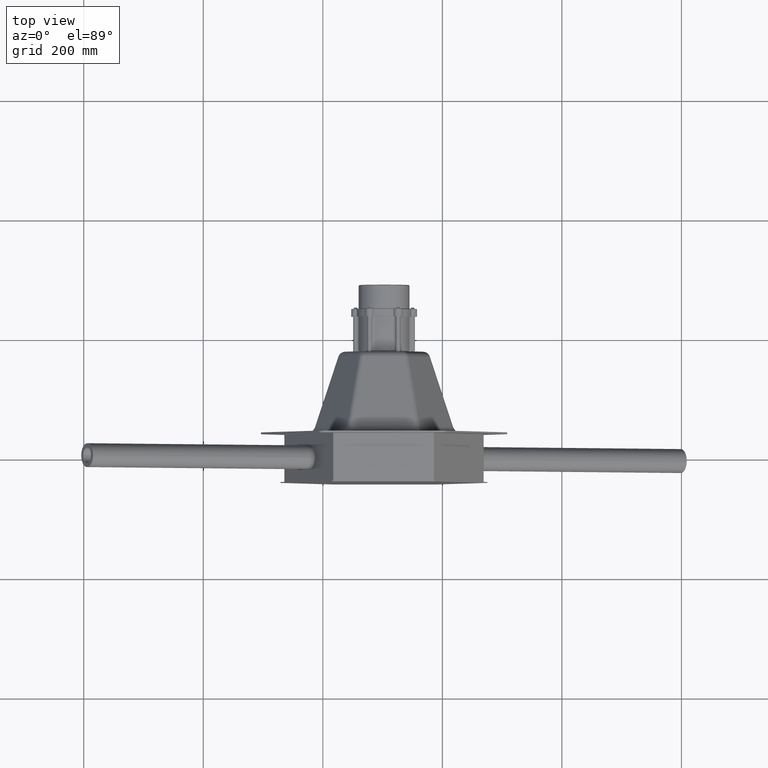
[diagram: clean part render]
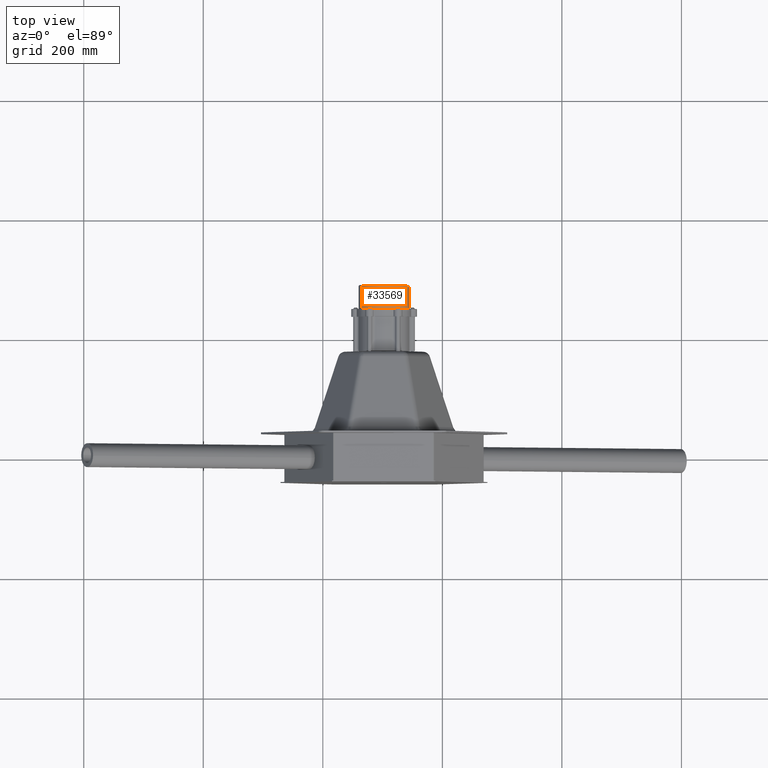
[diagram: same view with one face highlighted and labeled with its STEP entity id]
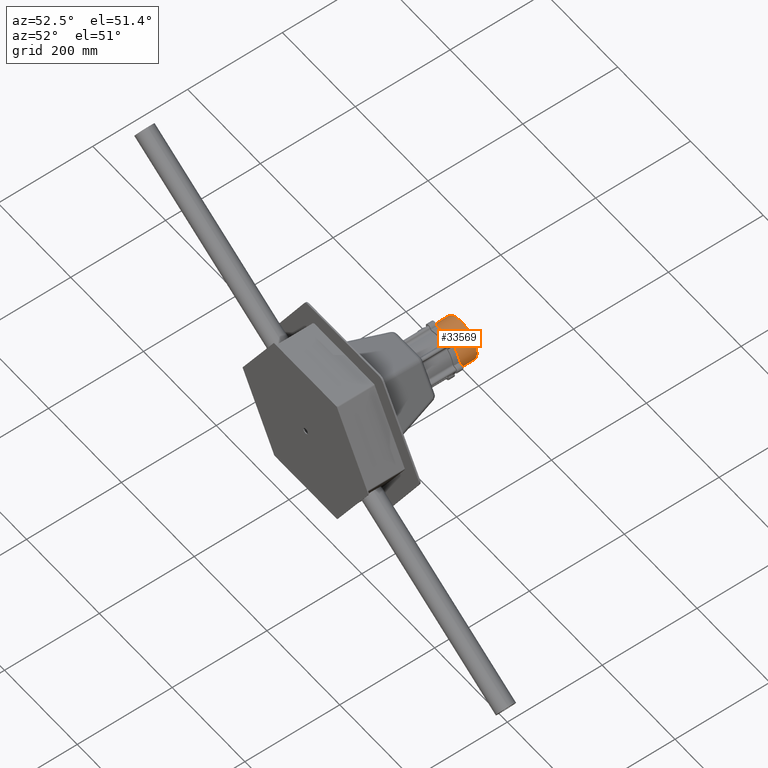
[diagram: same view with one face highlighted and labeled with its STEP entity id]
A machine part, top view. The second image highlights one B-rep face of the part: STEP entity #33569.
A second angle (auxiliary view) of the same face is appended — the face is thin or edge-on in the first view.
In plain terms, the highlighted cylindrical surface (edge-blend (fillet) strip) has radius 42.5 mm, axis along (0, -1, 0).
Its self-contained STEP definition (entity closure, byte-faithful):
#64 = DIRECTION ( 'NONE',  ( 1.000000000000000000, 0.0000000000000000000, 0.0000000000000000000 ) ) ;
#229 = LINE ( 'NONE', #6273, #1031 ) ;
#1031 = VECTOR ( 'NONE', #21780, 1000.000000000000000 ) ;
#2861 = AXIS2_PLACEMENT_3D ( 'NONE', #12896, #31017, #15479 ) ;
#5821 = EDGE_CURVE ( 'NONE', #10244, #27410, #10592, .T. ) ;
#6273 = CARTESIAN_POINT ( 'NONE',  ( 42.49999999999970157, -1.210511725580065701E-12, -40.00000000000000000 ) ) ;
#6753 = DIRECTION ( 'NONE',  ( -0.0000000000000000000, -0.0000000000000000000, 1.000000000000000000 ) ) ;
#6953 = AXIS2_PLACEMENT_3D ( 'NONE', #15542, #28369, #64 ) ;
#7998 = CARTESIAN_POINT ( 'NONE',  ( -3.046066003598024707E-13, -1.210511725580065701E-12, -3.999999999999996447 ) ) ;
#10244 = VERTEX_POINT ( 'NONE', #30268 ) ;
#10414 = FACE_OUTER_BOUND ( 'NONE', #12931, .T. ) ;
#10592 = CIRCLE ( 'NONE', #12984, 42.50000000000000711 ) ;
#10601 = DIRECTION ( 'NONE',  ( 1.000000000000000000, 0.0000000000000000000, 0.0000000000000000000 ) ) ;
#11425 = ORIENTED_EDGE ( 'NONE', *, *, #27516, .T. ) ;
#12018 = ORIENTED_EDGE ( 'NONE', *, *, #22424, .F. ) ;
#12896 = CARTESIAN_POINT ( 'NONE',  ( -3.046066003598024707E-13, -1.210511725580065701E-12, -41.00000000000000000 ) ) ;
#12931 = EDGE_LOOP ( 'NONE', ( #12018, #13004, #11425, #30661 ) ) ;
#12984 = AXIS2_PLACEMENT_3D ( 'NONE', #7998, #26125, #10601 ) ;
#13004 = ORIENTED_EDGE ( 'NONE', *, *, #28471, .T. ) ;
#13403 = CARTESIAN_POINT ( 'NONE',  ( -42.50000000000031264, -1.205306976683689495E-12, -3.999999999999996447 ) ) ;
#15479 = DIRECTION ( 'NONE',  ( -1.000000000000000000, 0.0000000000000000000, 0.0000000000000000000 ) ) ;
#15542 = CARTESIAN_POINT ( 'NONE',  ( -3.046066003598024707E-13, -1.210511725580065701E-12, -40.00000000000000000 ) ) ;
#16760 = VECTOR ( 'NONE', #6753, 1000.000000000000000 ) ;
#17490 = VERTEX_POINT ( 'NONE', #26431 ) ;
#17981 = CARTESIAN_POINT ( 'NONE',  ( 42.49999999999970157, -1.210511725580065701E-12, -41.00000000000000000 ) ) ;
#19524 = VERTEX_POINT ( 'NONE', #17981 ) ;
#21780 = DIRECTION ( 'NONE',  ( -0.0000000000000000000, -0.0000000000000000000, 1.000000000000000000 ) ) ;
#22424 = EDGE_CURVE ( 'NONE', #17490, #27410, #30553, .T. ) ;
#26125 = DIRECTION ( 'NONE',  ( -0.0000000000000000000, -0.0000000000000000000, -1.000000000000000000 ) ) ;
#26431 = CARTESIAN_POINT ( 'NONE',  ( -42.50000000000031264, -1.205306976683689495E-12, -41.00000000000000000 ) ) ;
#27410 = VERTEX_POINT ( 'NONE', #13403 ) ;
#27516 = EDGE_CURVE ( 'NONE', #19524, #10244, #229, .T. ) ;
#27714 = CIRCLE ( 'NONE', #2861, 42.50000000000000711 ) ;
#28369 = DIRECTION ( 'NONE',  ( -0.0000000000000000000, -0.0000000000000000000, 1.000000000000000000 ) ) ;
#28471 = EDGE_CURVE ( 'NONE', #17490, #19524, #27714, .T. ) ;
#29455 = CYLINDRICAL_SURFACE ( 'NONE', #6953, 42.50000000000000711 ) ;
#30268 = CARTESIAN_POINT ( 'NONE',  ( 42.49999999999970157, -1.210511725580065701E-12, -3.999999999999996447 ) ) ;
#30553 = LINE ( 'NONE', #32553, #16760 ) ;
#30661 = ORIENTED_EDGE ( 'NONE', *, *, #5821, .T. ) ;
#31017 = DIRECTION ( 'NONE',  ( -0.0000000000000000000, -0.0000000000000000000, 1.000000000000000000 ) ) ;
#32553 = CARTESIAN_POINT ( 'NONE',  ( -42.50000000000031264, -1.205306976683689495E-12, -40.00000000000000000 ) ) ;
#33569 = ADVANCED_FACE ( 'NONE', ( #10414 ), #29455, .T. ) ;